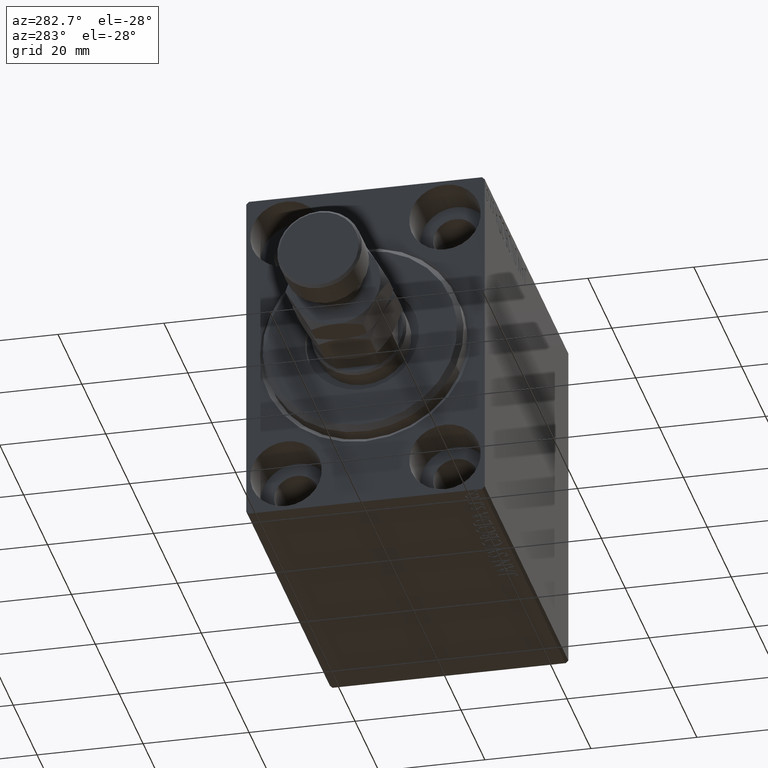
[diagram: clean part render]
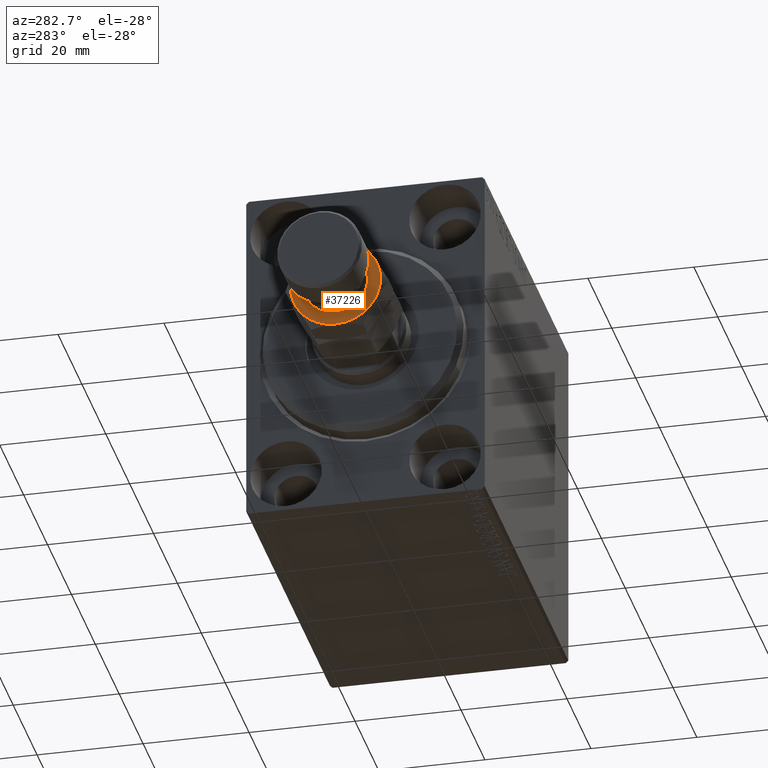
[diagram: same view with one face highlighted and labeled with its STEP entity id]
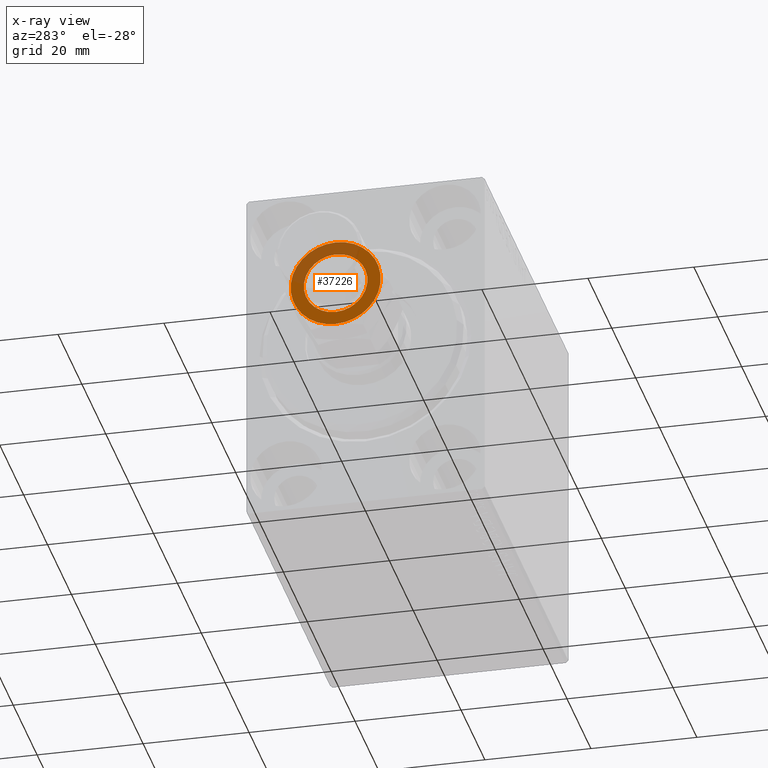
[diagram: x-ray of the same camera — body ghosted, the highlighted face saturated]
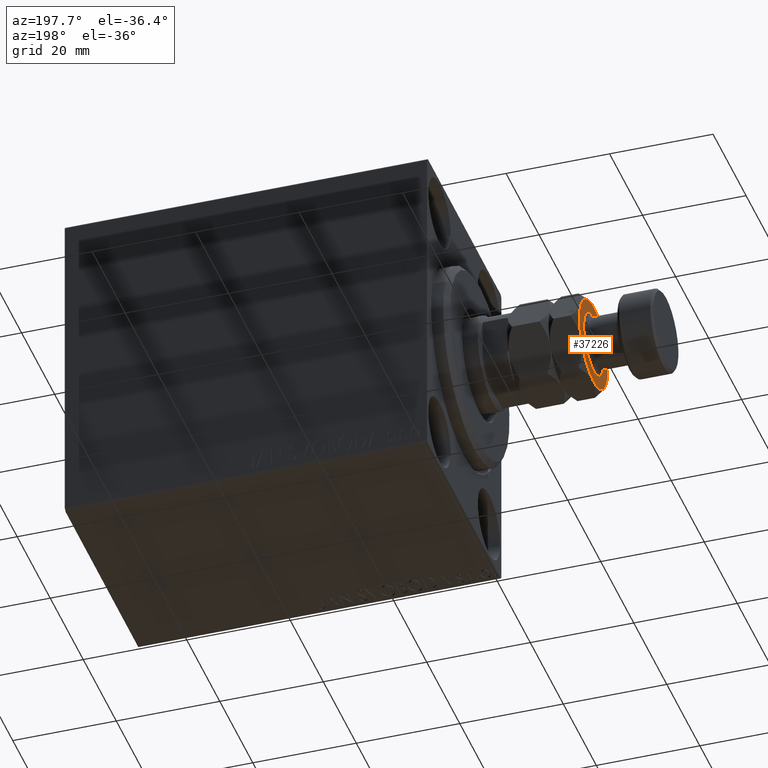
[diagram: same view with one face highlighted and labeled with its STEP entity id]
A machine part, auxiliary view. The second image highlights one B-rep face of the part: STEP entity #37226.
The next image is the same camera in x-ray: the body ghosted, the highlighted face saturated — about 33% of this face is hidden behind the body in this view.
A second angle (auxiliary view) of the same face is appended — the face is thin or edge-on in the first view.
In plain terms, the highlighted planar face has unit normal (-1, 0, 0).
Its self-contained STEP definition (entity closure, byte-faithful):
#1648 = DIRECTION ( 'NONE',  ( 0.000000000000000000, -0.000000000000000000, 1.000000000000000000 ) ) ;
#1871 = CARTESIAN_POINT ( 'NONE',  ( 0.000000000000000000, 0.000000000000000000, 14.00000000000000000 ) ) ;
#2020 = EDGE_CURVE ( 'NONE', #15674, #3407, #21538, .T. ) ;
#2142 = DIRECTION ( 'NONE',  ( 0.000000000000000000, -0.000000000000000000, 1.000000000000000000 ) ) ;
#2366 = PLANE ( 'NONE',  #38655 ) ;
#2515 = CARTESIAN_POINT ( 'NONE',  ( -6.000000000000000000, 7.347880794884119736E-16, 13.99999999999999822 ) ) ;
#2712 = AXIS2_PLACEMENT_3D ( 'NONE', #9669, #9216, #23673 ) ;
#2782 = CARTESIAN_POINT ( 'NONE',  ( 8.499999999999996447, 1.502314598737159820E-15, 14.00000000000000000 ) ) ;
#3060 = CARTESIAN_POINT ( 'NONE',  ( 0.000000000000000000, 0.000000000000000000, 14.00000000000000000 ) ) ;
#3407 = VERTEX_POINT ( 'NONE', #2515 ) ;
#3450 = CARTESIAN_POINT ( 'NONE',  ( -4.250000000000000000, 7.361215932167723963, 14.00000000000000000 ) ) ;
#5007 = DIRECTION ( 'NONE',  ( 0.000000000000000000, -0.000000000000000000, 1.000000000000000000 ) ) ;
#5391 = CARTESIAN_POINT ( 'NONE',  ( 4.250000000000000000, -7.361215932167723963, 14.00000000000000000 ) ) ;
#5607 = DIRECTION ( 'NONE',  ( 1.000000000000000000, 0.000000000000000000, 0.000000000000000000 ) ) ;
#5614 = VERTEX_POINT ( 'NONE', #5391 ) ;
#6078 = EDGE_CURVE ( 'NONE', #45181, #5614, #41447, .T. ) ;
#6653 = DIRECTION ( 'NONE',  ( -0.000000000000000000, 0.000000000000000000, -1.000000000000000000 ) ) ;
#6972 = AXIS2_PLACEMENT_3D ( 'NONE', #16014, #5007, #15116 ) ;
#8155 = ORIENTED_EDGE ( 'NONE', *, *, #6078, .T. ) ;
#9006 = DIRECTION ( 'NONE',  ( 1.000000000000000000, 0.000000000000000000, 0.000000000000000000 ) ) ;
#9126 = CARTESIAN_POINT ( 'NONE',  ( 0.000000000000000000, 0.000000000000000000, 14.00000000000000000 ) ) ;
#9216 = DIRECTION ( 'NONE',  ( 0.000000000000000000, -0.000000000000000000, 1.000000000000000000 ) ) ;
#9669 = CARTESIAN_POINT ( 'NONE',  ( 0.000000000000000000, 0.000000000000000000, 14.00000000000000000 ) ) ;
#10083 = CARTESIAN_POINT ( 'NONE',  ( 6.000000000000000000, 0.000000000000000000, 13.99999999999999822 ) ) ;
#10327 = DIRECTION ( 'NONE',  ( 1.000000000000000000, 0.000000000000000000, 0.000000000000000000 ) ) ;
#11617 = AXIS2_PLACEMENT_3D ( 'NONE', #1871, #1648, #9006 ) ;
#12482 = CARTESIAN_POINT ( 'NONE',  ( 0.000000000000000000, 0.000000000000000000, 14.00000000000000000 ) ) ;
#12644 = EDGE_CURVE ( 'NONE', #14044, #39365, #36531, .T. ) ;
#13117 = EDGE_LOOP ( 'NONE', ( #14197, #26284, #40540, #15884, #26619, #8155 ) ) ;
#14012 = CIRCLE ( 'NONE', #24250, 8.499999999999996447 ) ;
#14044 = VERTEX_POINT ( 'NONE', #3450 ) ;
#14197 = ORIENTED_EDGE ( 'NONE', *, *, #28110, .T. ) ;
#15116 = DIRECTION ( 'NONE',  ( 1.000000000000000000, 0.000000000000000000, 0.000000000000000000 ) ) ;
#15674 = VERTEX_POINT ( 'NONE', #10083 ) ;
#15884 = ORIENTED_EDGE ( 'NONE', *, *, #12644, .T. ) ;
#16014 = CARTESIAN_POINT ( 'NONE',  ( 0.000000000000000000, 0.000000000000000000, 14.00000000000000000 ) ) ;
#16391 = DIRECTION ( 'NONE',  ( 1.000000000000000000, 0.000000000000000000, -0.000000000000000000 ) ) ;
#16442 = ORIENTED_EDGE ( 'NONE', *, *, #36172, .T. ) ;
#17243 = DIRECTION ( 'NONE',  ( 0.000000000000000000, 0.000000000000000000, 1.000000000000000000 ) ) ;
#17664 = ORIENTED_EDGE ( 'NONE', *, *, #2020, .T. ) ;
#17709 = CIRCLE ( 'NONE', #43383, 8.499999999999996447 ) ;
#17809 = AXIS2_PLACEMENT_3D ( 'NONE', #12482, #2142, #5607 ) ;
#20058 = FACE_OUTER_BOUND ( 'NONE', #13117, .T. ) ;
#20799 = AXIS2_PLACEMENT_3D ( 'NONE', #9126, #27258, #26360 ) ;
#20999 = CIRCLE ( 'NONE', #29828, 6.000000000000000000 ) ;
#21538 = CIRCLE ( 'NONE', #20799, 6.000000000000000000 ) ;
#22830 = EDGE_CURVE ( 'NONE', #28916, #14044, #14012, .T. ) ;
#23673 = DIRECTION ( 'NONE',  ( 1.000000000000000000, 0.000000000000000000, 0.000000000000000000 ) ) ;
#24031 = CARTESIAN_POINT ( 'NONE',  ( -4.250000000000000888, -7.361215932167725740, 14.00000000000000000 ) ) ;
#24250 = AXIS2_PLACEMENT_3D ( 'NONE', #3060, #27858, #38224 ) ;
#24937 = EDGE_CURVE ( 'NONE', #38427, #28916, #17709, .T. ) ;
#25341 = CARTESIAN_POINT ( 'NONE',  ( -8.499999999999996447, 0.000000000000000000, 14.00000000000000000 ) ) ;
#26284 = ORIENTED_EDGE ( 'NONE', *, *, #24937, .T. ) ;
#26360 = DIRECTION ( 'NONE',  ( 1.000000000000000000, 0.000000000000000000, 0.000000000000000000 ) ) ;
#26619 = ORIENTED_EDGE ( 'NONE', *, *, #44562, .T. ) ;
#27258 = DIRECTION ( 'NONE',  ( -0.000000000000000000, 0.000000000000000000, -1.000000000000000000 ) ) ;
#27858 = DIRECTION ( 'NONE',  ( 0.000000000000000000, -0.000000000000000000, 1.000000000000000000 ) ) ;
#28011 = CARTESIAN_POINT ( 'NONE',  ( 0.000000000000000000, 0.000000000000000000, 14.00000000000000000 ) ) ;
#28110 = EDGE_CURVE ( 'NONE', #5614, #38427, #34709, .T. ) ;
#28916 = VERTEX_POINT ( 'NONE', #34560 ) ;
#29828 = AXIS2_PLACEMENT_3D ( 'NONE', #28011, #6653, #10327 ) ;
#31267 = DIRECTION ( 'NONE',  ( 1.000000000000000000, 0.000000000000000000, 0.000000000000000000 ) ) ;
#31438 = EDGE_LOOP ( 'NONE', ( #17664, #16442 ) ) ;
#31456 = CIRCLE ( 'NONE', #11617, 8.499999999999996447 ) ;
#34105 = DIRECTION ( 'NONE',  ( 0.000000000000000000, -0.000000000000000000, 1.000000000000000000 ) ) ;
#34560 = CARTESIAN_POINT ( 'NONE',  ( 4.249999999999999112, 7.361215932167725740, 14.00000000000000000 ) ) ;
#34709 = CIRCLE ( 'NONE', #17809, 8.499999999999996447 ) ;
#36172 = EDGE_CURVE ( 'NONE', #3407, #15674, #20999, .T. ) ;
#36531 = CIRCLE ( 'NONE', #2712, 8.499999999999996447 ) ;
#37226 = ADVANCED_FACE ( 'NONE', ( #41662, #20058 ), #2366, .T. ) ;
#38224 = DIRECTION ( 'NONE',  ( 1.000000000000000000, 0.000000000000000000, 0.000000000000000000 ) ) ;
#38427 = VERTEX_POINT ( 'NONE', #2782 ) ;
#38655 = AXIS2_PLACEMENT_3D ( 'NONE', #44878, #34105, #16391 ) ;
#39365 = VERTEX_POINT ( 'NONE', #25341 ) ;
#40540 = ORIENTED_EDGE ( 'NONE', *, *, #22830, .T. ) ;
#41447 = CIRCLE ( 'NONE', #6972, 8.499999999999996447 ) ;
#41662 = FACE_BOUND ( 'NONE', #31438, .T. ) ;
#42742 = CARTESIAN_POINT ( 'NONE',  ( 0.000000000000000000, 0.000000000000000000, 14.00000000000000000 ) ) ;
#43383 = AXIS2_PLACEMENT_3D ( 'NONE', #42742, #17243, #31267 ) ;
#44562 = EDGE_CURVE ( 'NONE', #39365, #45181, #31456, .T. ) ;
#44878 = CARTESIAN_POINT ( 'NONE',  ( 0.000000000000000000, 0.000000000000000000, 14.00000000000000000 ) ) ;
#45181 = VERTEX_POINT ( 'NONE', #24031 ) ;